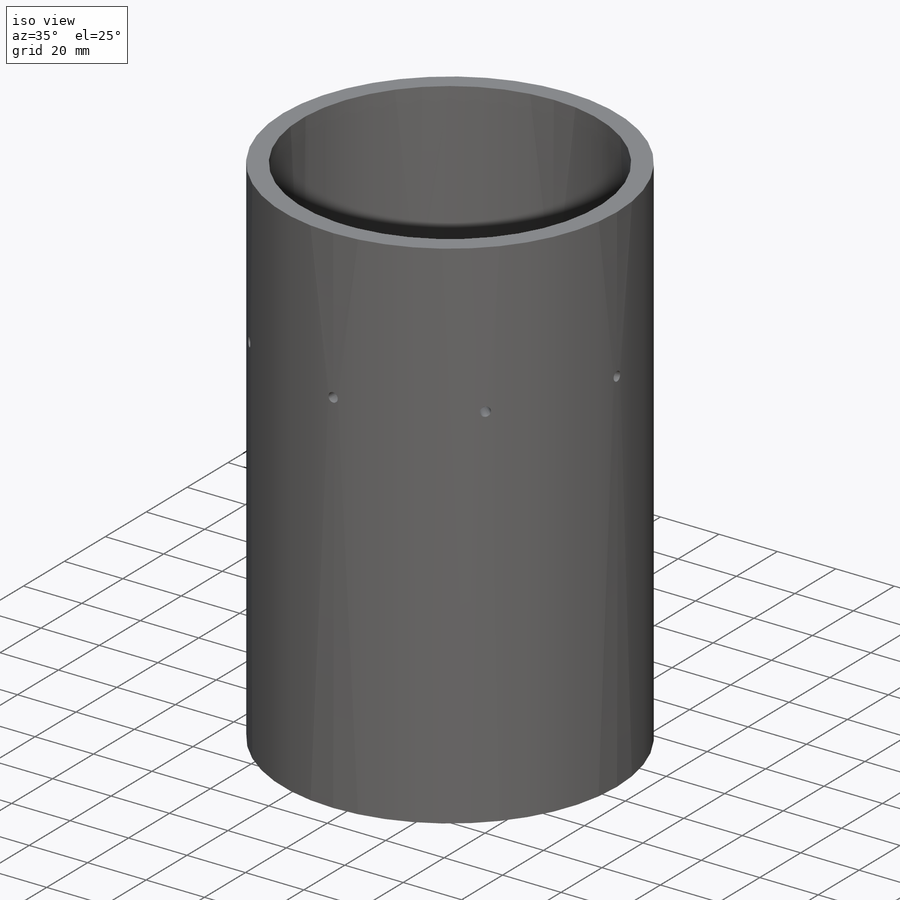
[diagram: iso view]
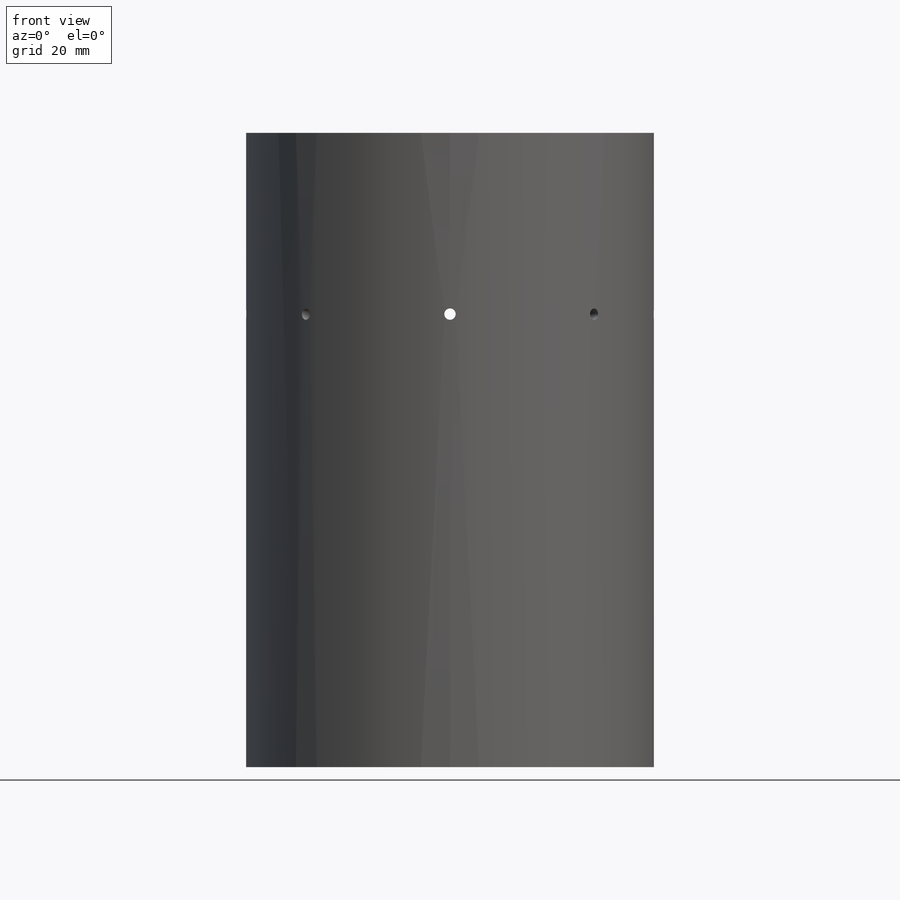
[diagram: front view]
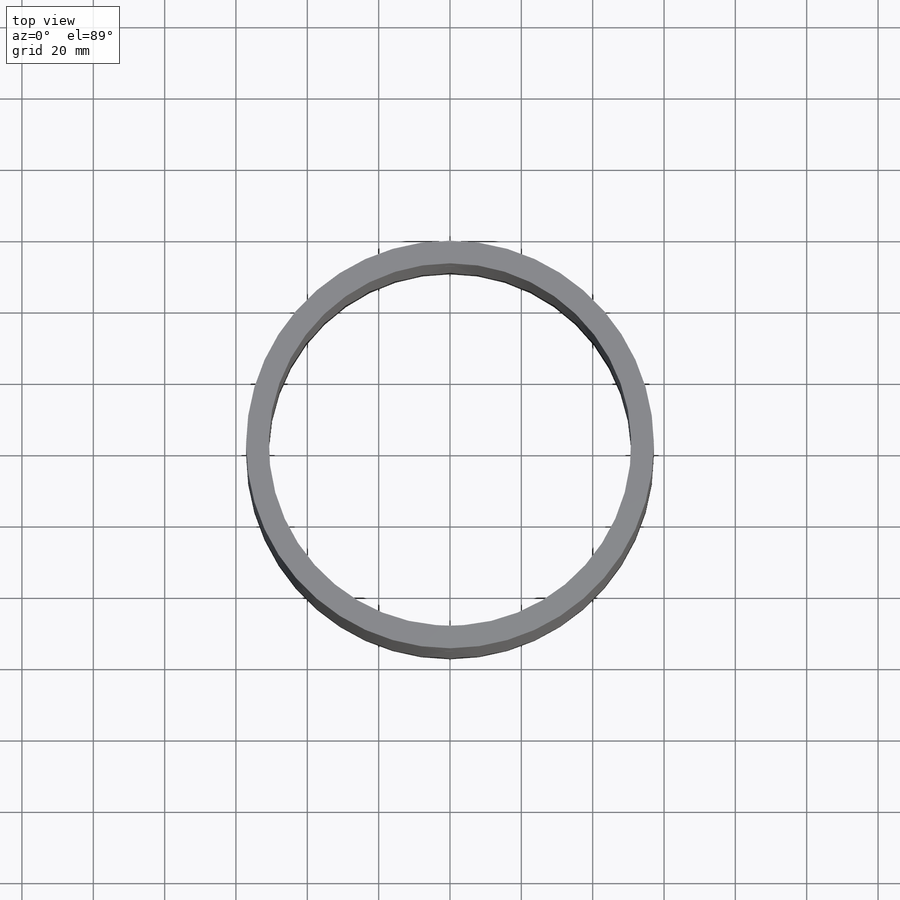
[diagram: top view]
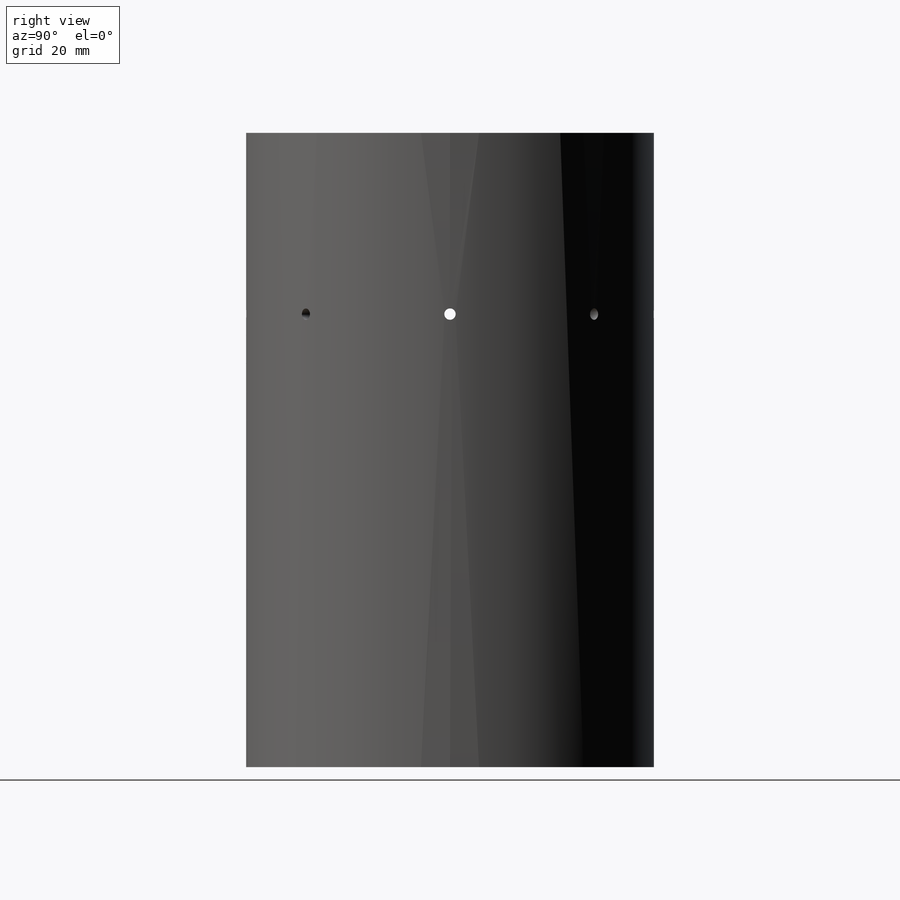
[diagram: right view]
SOLIDWORKS PART (.sldprt)
format: sldprt  version: not decoded by parser v0  size: 178,688 bytes
history: native  units: mm
features: sketch x2, material x1, extrude x1, plane x1, cut_extrude x1, pattern_circular x1 (+13 scaffold rows collapsed)
feature tree (20):
  scaffold x13  (default folders/planes/origin — collapsed)
  material  "PVC Rigid"
  sketch  "Sketch1"  dims[D1=101.6mm D2=6.35mm]
  extrude  "Boss-Extrude1"  Depth=177.8mm
  plane  "Plane1"  Offset=53.975mm
  sketch  "Sketch3"  dims[D1=3.175mm D2=127.0mm D3=0.0mm]
  cut_extrude  "Cut-Extrude1"  Depth=12.7mm
  pattern_circular  "CirPattern1"  Count=8 Angle=360deg
decode coverage: 5 of 5 modeling features carry decoded parameters
note: suppression state not decoded; provenance and decode notes live in map.json
